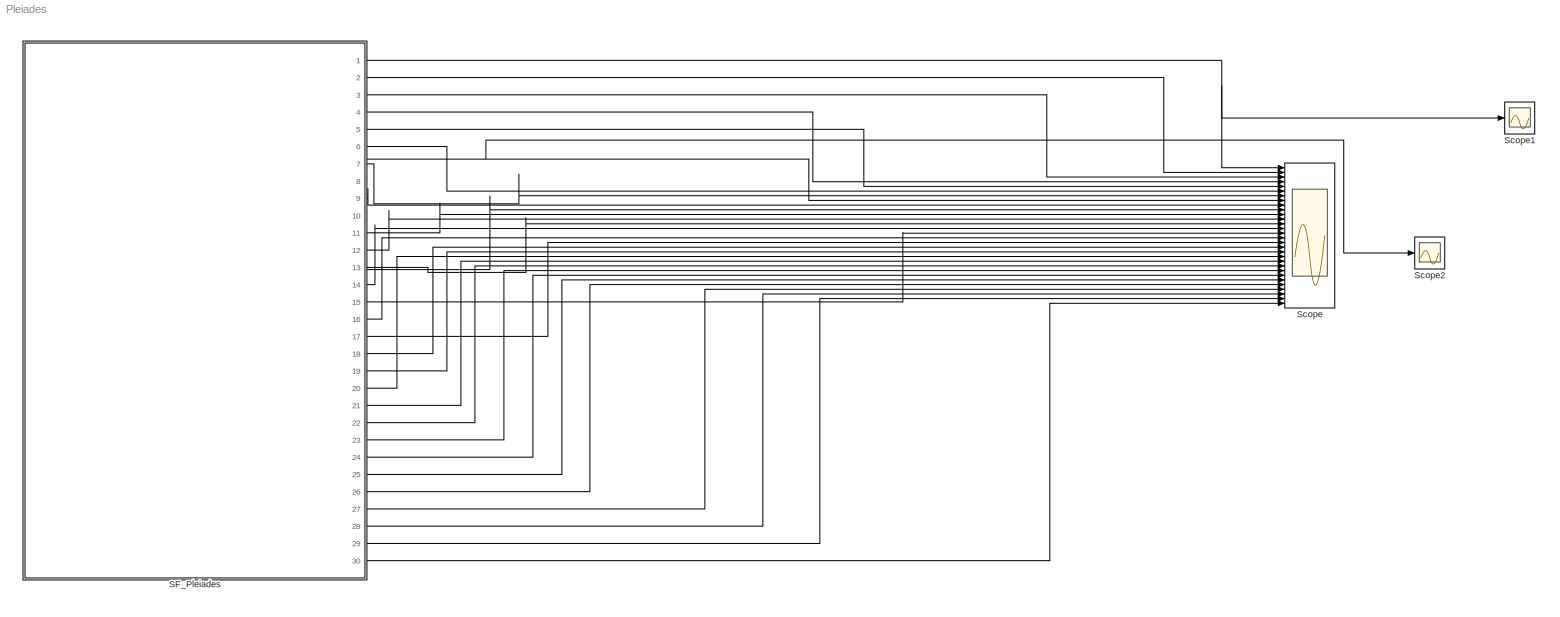
MODEL Pleiades
KIND model
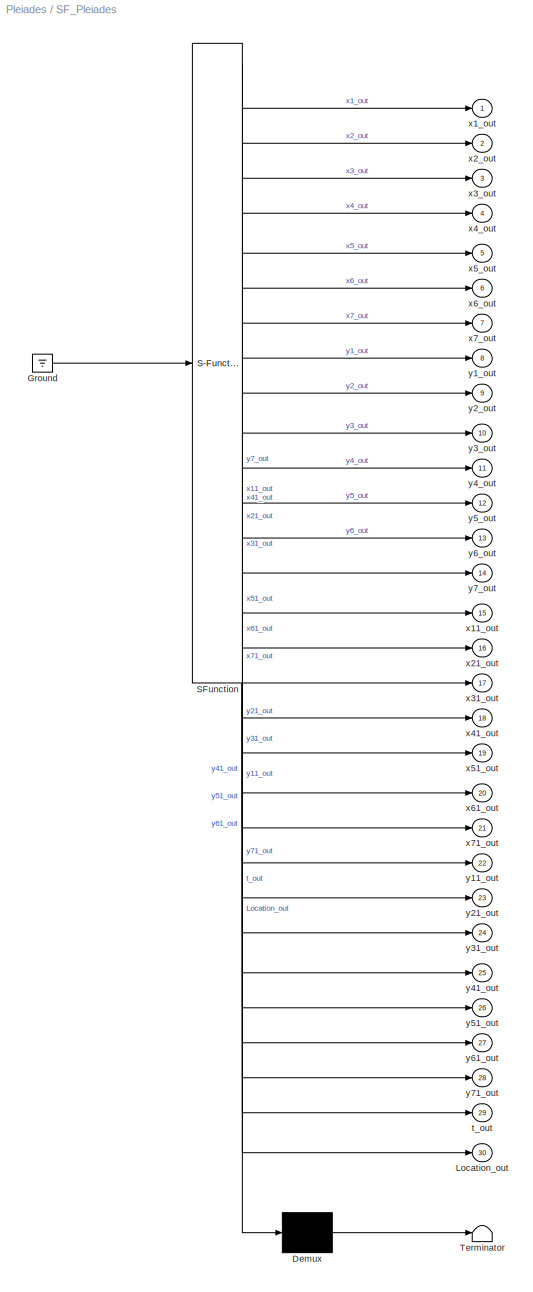
BLOCK [SubSystem] SF_Pleiades
  ErrorFcn = Stateflow.Translate.translate
  PermitHierarchicalResolution = ExplicitOnly
  Ports = [0, 30]
  RequestExecContextInheritance = off
  SFBlockType = Chart
  SID = 1
  TreatAsAtomicUnit = on
BLOCK [Demux] SF_Pleiades/ Demux 
  Outputs = 1
  Ports = [1, 1]
  SID = 1::96
BLOCK [Ground] SF_Pleiades/ Ground 
  SID = 1::98
BLOCK [S-Function] SF_Pleiades/ SFunction 
  EnableBusSupport = off
  FunctionName = sf_sfun
  PortCounts = [1 31]
  Ports = [1, 31]
  SFcnIsStateOwnerBlock = off
  SFunctionDeploymentMode = off
  SID = 1::95
  Tag = Stateflow S-Function 3
BLOCK [Terminator] SF_Pleiades/ Terminator 
  SID = 1::97
BLOCK [Outport] SF_Pleiades/Location_out
  IconDisplay = Port number
  Port = 30
  SID = 1::94
BLOCK [Outport] SF_Pleiades/t_out
  IconDisplay = Port number
  Port = 29
  SID = 1::93
BLOCK [Outport] SF_Pleiades/x11_out
  IconDisplay = Port number
  Port = 15
  SID = 1::79
BLOCK [Outport] SF_Pleiades/x1_out
  IconDisplay = Port number
  SID = 1::65
BLOCK [Outport] SF_Pleiades/x21_out
  IconDisplay = Port number
  Port = 16
  SID = 1::80
BLOCK [Outport] SF_Pleiades/x2_out
  IconDisplay = Port number
  Port = 2
  SID = 1::66
BLOCK [Outport] SF_Pleiades/x31_out
  IconDisplay = Port number
  Port = 17
  SID = 1::81
BLOCK [Outport] SF_Pleiades/x3_out
  IconDisplay = Port number
  Port = 3
  SID = 1::67
BLOCK [Outport] SF_Pleiades/x41_out
  IconDisplay = Port number
  Port = 18
  SID = 1::82
BLOCK [Outport] SF_Pleiades/x4_out
  IconDisplay = Port number
  Port = 4
  SID = 1::68
BLOCK [Outport] SF_Pleiades/x51_out
  IconDisplay = Port number
  Port = 19
  SID = 1::83
BLOCK [Outport] SF_Pleiades/x5_out
  IconDisplay = Port number
  Port = 5
  SID = 1::69
BLOCK [Outport] SF_Pleiades/x61_out
  IconDisplay = Port number
  Port = 20
  SID = 1::84
BLOCK [Outport] SF_Pleiades/x6_out
  IconDisplay = Port number
  Port = 6
  SID = 1::70
BLOCK [Outport] SF_Pleiades/x71_out
  IconDisplay = Port number
  Port = 21
  SID = 1::85
BLOCK [Outport] SF_Pleiades/x7_out
  IconDisplay = Port number
  Port = 7
  SID = 1::71
BLOCK [Outport] SF_Pleiades/y11_out
  IconDisplay = Port number
  Port = 22
  SID = 1::86
BLOCK [Outport] SF_Pleiades/y1_out
  IconDisplay = Port number
  Port = 8
  SID = 1::72
BLOCK [Outport] SF_Pleiades/y21_out
  IconDisplay = Port number
  Port = 23
  SID = 1::87
BLOCK [Outport] SF_Pleiades/y2_out
  IconDisplay = Port number
  Port = 9
  SID = 1::73
BLOCK [Outport] SF_Pleiades/y31_out
  IconDisplay = Port number
  Port = 24
  SID = 1::88
BLOCK [Outport] SF_Pleiades/y3_out
  IconDisplay = Port number
  Port = 10
  SID = 1::74
BLOCK [Outport] SF_Pleiades/y41_out
  IconDisplay = Port number
  Port = 25
  SID = 1::89
BLOCK [Outport] SF_Pleiades/y4_out
  IconDisplay = Port number
  Port = 11
  SID = 1::75
BLOCK [Outport] SF_Pleiades/y51_out
  IconDisplay = Port number
  Port = 26
  SID = 1::90
BLOCK [Outport] SF_Pleiades/y5_out
  IconDisplay = Port number
  Port = 12
  SID = 1::76
BLOCK [Outport] SF_Pleiades/y61_out
  IconDisplay = Port number
  Port = 27
  SID = 1::91
BLOCK [Outport] SF_Pleiades/y6_out
  IconDisplay = Port number
  Port = 13
  SID = 1::77
BLOCK [Outport] SF_Pleiades/y71_out
  IconDisplay = Port number
  Port = 28
  SID = 1::92
BLOCK [Outport] SF_Pleiades/y7_out
  IconDisplay = Port number
  Port = 14
  SID = 1::78
BLOCK [Scope] Scope
  Floating = off
  NumInputPorts = 30
  Ports = [30]
  SID = 2
  ScopeSpecificationString = C++SS(StrPVP('Location','[188, 365, 512, 604]'),StrPVP('Open','off'),MxPVP('AxesTitles',54,'struct(''axes1'',''%<SignalLabel>'',''axes2'',''%<SignalLabel>'',''axes3'',''%<SignalLabel>'',''axes4'',''%<SignalLabel>'',''axes5'',''%<SignalLabel>'',''axes6'',''%<SignalLabel>'',''axes7'',''%<SignalLabel>'',''axes8'',''%<SignalLabel>'',''axes9'',''%<SignalLabel>'',''axes10'',''%<SignalLabel>'',''axes11''...<+1274ch>
BLOCK [Scope] Scope1
  Floating = off
  NumInputPorts = 1
  Ports = [1]
  SID = 4
  ScopeSpecificationString = C++SS(StrPVP('Location','[1978, 378, 2302, 617]'),StrPVP('Open','off'),MxPVP('AxesTitles',54,'struct(''axes1'',''%<SignalLabel>'')'),MxPVP('ScopeGraphics',57,'struct(''FigureColor'',''[0.5 0.5 0.5]'',''AxesColor'',''[0 0 0]'',''AxesTickColor'',''[1 1 1]'',''LineColors'',''[1 1 0;1 0 1;0 1 1;1 0 0;0 1 0;0 0 1]'',''LineStyles'',''-|-|-|-|-|-'',''LineWidths'',''[0.5 0.5 0.5 0.5 0.5 0.5]'',''MarkerSty...<+293ch>
BLOCK [Scope] Scope2
  Floating = off
  NumInputPorts = 1
  Ports = [1]
  SID = 5
  ScopeSpecificationString = C++SS(StrPVP('Location','[2076, 480, 2400, 719]'),StrPVP('Open','off'),MxPVP('AxesTitles',54,'struct(''axes1'',''%<SignalLabel>'')'),MxPVP('ScopeGraphics',57,'struct(''FigureColor'',''[0.5 0.5 0.5]'',''AxesColor'',''[0 0 0]'',''AxesTickColor'',''[1 1 1]'',''LineColors'',''[1 1 0;1 0 1;0 1 1;1 0 0;0 1 0;0 0 1]'',''LineStyles'',''-|-|-|-|-|-'',''LineWidths'',''[0.5 0.5 0.5 0.5 0.5 0.5]'',''MarkerSty...<+293ch>
LINE SF_Pleiades/ Demux :1 -> SF_Pleiades/ Terminator :1
LINE SF_Pleiades/ Ground :1 -> SF_Pleiades/ SFunction :1
LINE SF_Pleiades/ SFunction :1 -> SF_Pleiades/ Demux :1
LINE SF_Pleiades/ SFunction :10 -> SF_Pleiades/y2_out:1
LINE SF_Pleiades/ SFunction :11 -> SF_Pleiades/y3_out:1
LINE SF_Pleiades/ SFunction :12 -> SF_Pleiades/y4_out:1
LINE SF_Pleiades/ SFunction :13 -> SF_Pleiades/y5_out:1
LINE SF_Pleiades/ SFunction :14 -> SF_Pleiades/y6_out:1
LINE SF_Pleiades/ SFunction :15 -> SF_Pleiades/y7_out:1
LINE SF_Pleiades/ SFunction :16 -> SF_Pleiades/x11_out:1
LINE SF_Pleiades/ SFunction :17 -> SF_Pleiades/x21_out:1
LINE SF_Pleiades/ SFunction :18 -> SF_Pleiades/x31_out:1
LINE SF_Pleiades/ SFunction :19 -> SF_Pleiades/x41_out:1
LINE SF_Pleiades/ SFunction :2 -> SF_Pleiades/x1_out:1
LINE SF_Pleiades/ SFunction :20 -> SF_Pleiades/x51_out:1
LINE SF_Pleiades/ SFunction :21 -> SF_Pleiades/x61_out:1
LINE SF_Pleiades/ SFunction :22 -> SF_Pleiades/x71_out:1
LINE SF_Pleiades/ SFunction :23 -> SF_Pleiades/y11_out:1
LINE SF_Pleiades/ SFunction :24 -> SF_Pleiades/y21_out:1
LINE SF_Pleiades/ SFunction :25 -> SF_Pleiades/y31_out:1
LINE SF_Pleiades/ SFunction :26 -> SF_Pleiades/y41_out:1
LINE SF_Pleiades/ SFunction :27 -> SF_Pleiades/y51_out:1
LINE SF_Pleiades/ SFunction :28 -> SF_Pleiades/y61_out:1
LINE SF_Pleiades/ SFunction :29 -> SF_Pleiades/y71_out:1
LINE SF_Pleiades/ SFunction :3 -> SF_Pleiades/x2_out:1
LINE SF_Pleiades/ SFunction :30 -> SF_Pleiades/t_out:1
LINE SF_Pleiades/ SFunction :31 -> SF_Pleiades/Location_out:1
LINE SF_Pleiades/ SFunction :4 -> SF_Pleiades/x3_out:1
LINE SF_Pleiades/ SFunction :5 -> SF_Pleiades/x4_out:1
LINE SF_Pleiades/ SFunction :6 -> SF_Pleiades/x5_out:1
LINE SF_Pleiades/ SFunction :7 -> SF_Pleiades/x6_out:1
LINE SF_Pleiades/ SFunction :8 -> SF_Pleiades/x7_out:1
LINE SF_Pleiades/ SFunction :9 -> SF_Pleiades/y1_out:1
NET SF_Pleiades:1 -> Scope1:1, Scope:1
LINE SF_Pleiades:10 -> Scope:10
LINE SF_Pleiades:11 -> Scope:11
LINE SF_Pleiades:12 -> Scope:12
LINE SF_Pleiades:13 -> Scope:13
LINE SF_Pleiades:14 -> Scope:14
LINE SF_Pleiades:15 -> Scope:15
LINE SF_Pleiades:16 -> Scope:16
LINE SF_Pleiades:17 -> Scope:17
LINE SF_Pleiades:18 -> Scope:18
LINE SF_Pleiades:19 -> Scope:19
LINE SF_Pleiades:2 -> Scope:2
LINE SF_Pleiades:20 -> Scope:20
LINE SF_Pleiades:21 -> Scope:21
LINE SF_Pleiades:22 -> Scope:22
LINE SF_Pleiades:23 -> Scope:23
LINE SF_Pleiades:24 -> Scope:24
LINE SF_Pleiades:25 -> Scope:25
LINE SF_Pleiades:26 -> Scope:26
LINE SF_Pleiades:27 -> Scope:27
LINE SF_Pleiades:28 -> Scope:28
LINE SF_Pleiades:29 -> Scope:29
LINE SF_Pleiades:3 -> Scope:3
LINE SF_Pleiades:30 -> Scope:30
LINE SF_Pleiades:4 -> Scope:4
LINE SF_Pleiades:5 -> Scope:5
LINE SF_Pleiades:6 -> Scope:6
LINE SF_Pleiades:7 -> Scope:7
NET SF_Pleiades:8 -> Scope2:1, Scope:8
LINE SF_Pleiades:9 -> Scope:9
note: NET lines group one-source signal fan-out (src -> all destinations, sorted); 1:1 wires keep LINE
CHART SF_Pleiades states=1 transitions=1
  STATE_LABEL 'Pleiades\\ndu:\\nx1_dot = x11;\\nx2_dot = x21;\\nx3_dot = x31;\\nx4_dot = x41;\\nx5_dot = x51;\\nx6_dot = x61;\\nx7_dot = x71;\\ny1_dot = y11;\\ny2_dot = y21;\\ny3_dot = y31;\\ny4_dot = y41;\\ny5_dot = y51;\\ny6_dot = y61;\\ny7_dot = y71;\\nx11_dot = 2.0 * (x2 - x1) / ((x1 - x2) ^ 2.0 + (y1 - y2) ^ 2.0) ^ (3.0 / 2.0) + 3.0 * (x3 - x1) / ((x1 - x3) ^ 2.0 + (y1 - y3) ^ 2.0) ^ (3.0 / 2.0) + 4.0 * (x4 - x1) / ((x1 - ...<+6550ch>'
